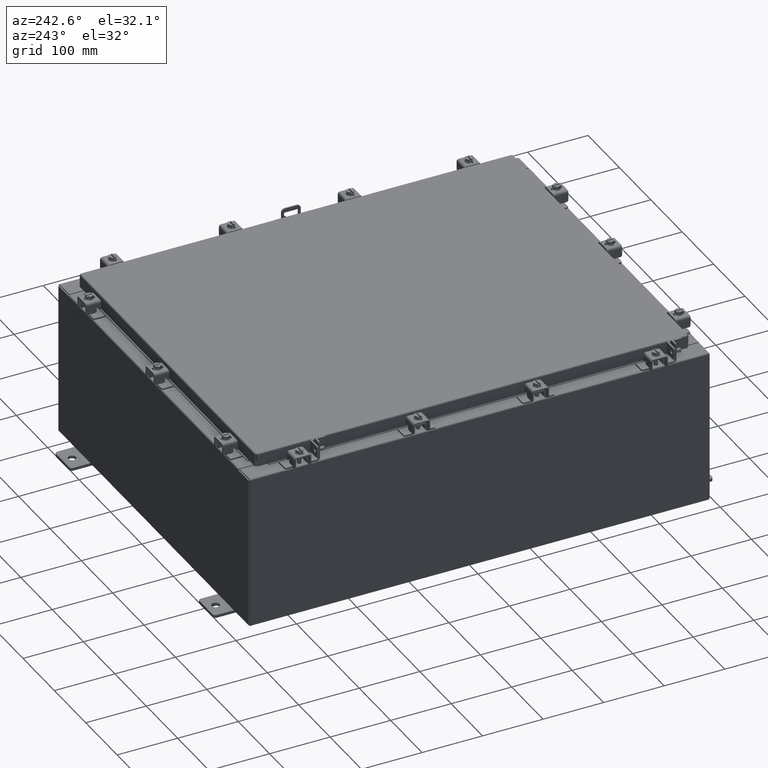
[diagram: clean part render]
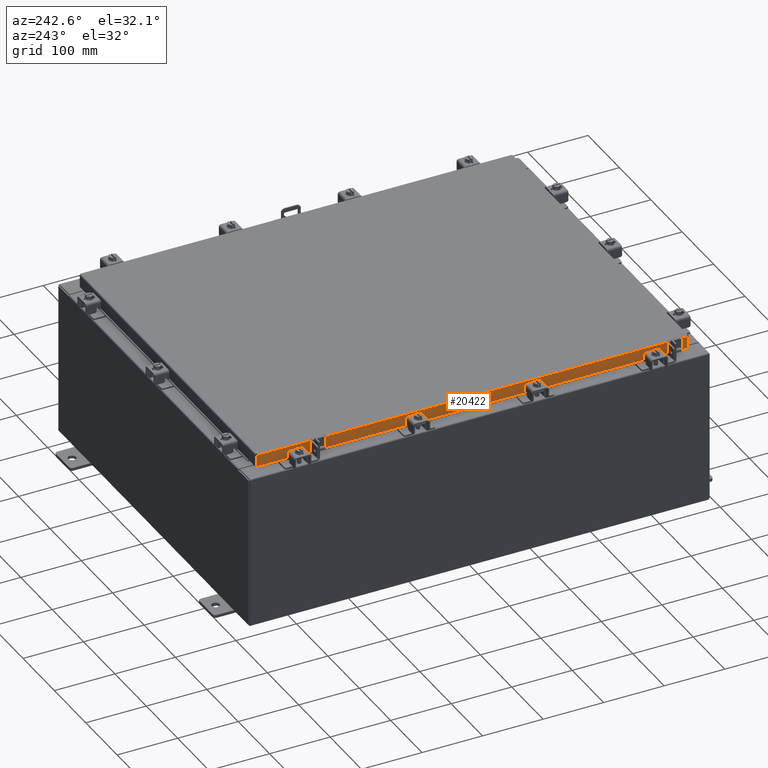
[diagram: same view with one face highlighted and labeled with its STEP entity id]
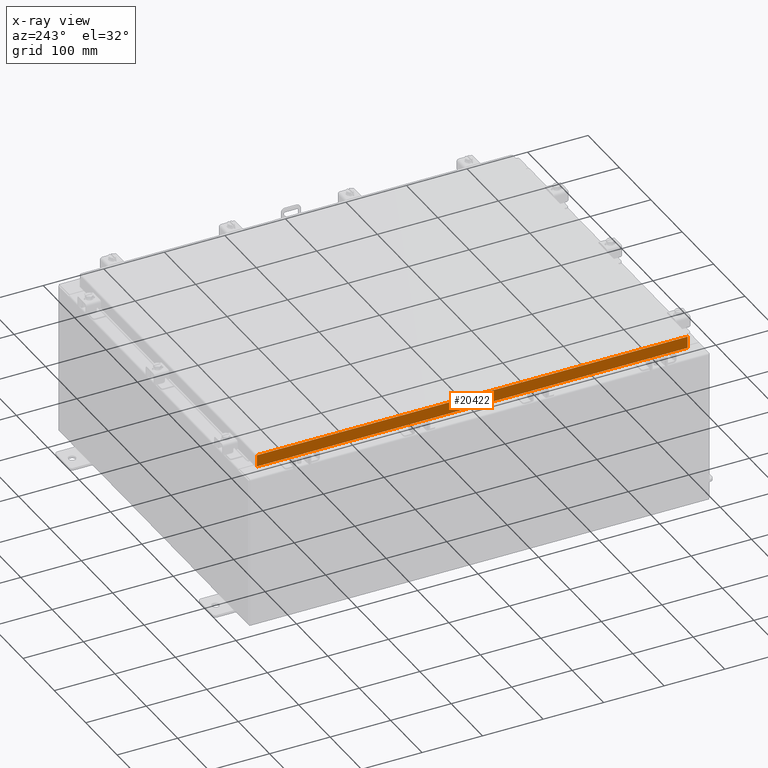
[diagram: x-ray of the same camera — body ghosted, the highlighted face saturated]
A machine part, auxiliary view. The second image highlights one B-rep face of the part: STEP entity #20422.
The next image is the same camera in x-ray: the body ghosted, the highlighted face saturated — about 0% of this face is hidden behind the body in this view.
In plain terms, the highlighted planar face has unit normal (1, 0, -0).
Its self-contained STEP definition (entity closure, byte-faithful):
#102 = VERTEX_POINT ( 'NONE', #9119 ) ;
#269 = PLANE ( 'NONE',  #9446 ) ;
#1220 = DIRECTION ( 'NONE',  ( 3.414908049476327800E-031, -1.000000000000000000, -9.308245715024052500E-046 ) ) ;
#1423 = LINE ( 'NONE', #15552, #19896 ) ;
#1425 = CARTESIAN_POINT ( 'NONE',  ( -11.07800000000000300, 14.00515786437627400, -0.8499999999999963100 ) ) ;
#1813 = VECTOR ( 'NONE', #16331, 39.37007874015748100 ) ;
#1892 = ORIENTED_EDGE ( 'NONE', *, *, #10545, .F. ) ;
#3062 = CARTESIAN_POINT ( 'NONE',  ( -11.07800000000000300, -14.09399999999999600, -0.8499999999999996400 ) ) ;
#3596 = VERTEX_POINT ( 'NONE', #18783 ) ;
#3731 = VECTOR ( 'NONE', #19124, 39.37007874015748100 ) ;
#4793 = DIRECTION ( 'NONE',  ( -0.0000000000000000000, 1.000000000000000000, 1.211441035930299800E-016 ) ) ;
#5317 = DIRECTION ( 'NONE',  ( -0.0000000000000000000, 1.000000000000000000, -0.0000000000000000000 ) ) ;
#6994 = EDGE_CURVE ( 'NONE', #3596, #14666, #7610, .T. ) ;
#7215 = ORIENTED_EDGE ( 'NONE', *, *, #8683, .F. ) ;
#7602 = EDGE_LOOP ( 'NONE', ( #16885, #17702, #12113, #7215, #1892, #11628 ) ) ;
#7610 = LINE ( 'NONE', #15566, #16556 ) ;
#8520 = CARTESIAN_POINT ( 'NONE',  ( -11.07800000000000300, -14.09399999999999600, -0.8499999999999996400 ) ) ;
#8683 = EDGE_CURVE ( 'NONE', #16158, #102, #16867, .T. ) ;
#9119 = CARTESIAN_POINT ( 'NONE',  ( -11.07799999999999600, 13.25515786437627400, -0.8500000000000012000 ) ) ;
#9239 = LINE ( 'NONE', #3062, #13424 ) ;
#9324 = DIRECTION ( 'NONE',  ( 1.000000000000000000, 3.414908049476327800E-031, -2.818880942772360100E-015 ) ) ;
#9446 = AXIS2_PLACEMENT_3D ( 'NONE', #16452, #9324, #21799 ) ;
#9768 = EDGE_CURVE ( 'NONE', #102, #17603, #10120, .T. ) ;
#10120 = LINE ( 'NONE', #8520, #3731 ) ;
#10236 = DIRECTION ( 'NONE',  ( -2.818880942772360100E-015, 6.982962677686265900E-015, -1.000000000000000000 ) ) ;
#10545 = EDGE_CURVE ( 'NONE', #15929, #16158, #9239, .T. ) ;
#11628 = ORIENTED_EDGE ( 'NONE', *, *, #17116, .F. ) ;
#12113 = ORIENTED_EDGE ( 'NONE', *, *, #9768, .F. ) ;
#12130 = VECTOR ( 'NONE', #5317, 39.37007874015748100 ) ;
#12394 = CARTESIAN_POINT ( 'NONE',  ( -11.07799999999999600, -13.25515786437626200, -0.8500000000000012000 ) ) ;
#12495 = CARTESIAN_POINT ( 'NONE',  ( -11.07799999999999900, -14.00515786437626400, -0.08770000000000007000 ) ) ;
#13424 = VECTOR ( 'NONE', #4793, 39.37007874015748100 ) ;
#14280 = FACE_OUTER_BOUND ( 'NONE', #7602, .T. ) ;
#14522 = CARTESIAN_POINT ( 'NONE',  ( -11.07799999999999900, -14.00515786437626500, -0.07469999999999978000 ) ) ;
#14666 = VERTEX_POINT ( 'NONE', #12495 ) ;
#15552 = CARTESIAN_POINT ( 'NONE',  ( -11.07799999999999900, 14.00515786437626900, 1.292858714020875700E-013 ) ) ;
#15566 = CARTESIAN_POINT ( 'NONE',  ( -11.07799999999999900, -14.09399999999999600, -0.08770000000000007000 ) ) ;
#15929 = VERTEX_POINT ( 'NONE', #16125 ) ;
#16118 = LINE ( 'NONE', #14522, #1813 ) ;
#16125 = CARTESIAN_POINT ( 'NONE',  ( -11.07800000000000300, -14.00515786437626200, -0.8499999999999996400 ) ) ;
#16158 = VERTEX_POINT ( 'NONE', #16992 ) ;
#16331 = DIRECTION ( 'NONE',  ( -2.818880942772360100E-015, 6.982962677686265900E-015, -1.000000000000000000 ) ) ;
#16452 = CARTESIAN_POINT ( 'NONE',  ( -11.07799999999999900, -3.783035137209876100E-030, 3.148837674004379000E-014 ) ) ;
#16556 = VECTOR ( 'NONE', #1220, 39.37007874015748100 ) ;
#16867 = LINE ( 'NONE', #12394, #12130 ) ;
#16885 = ORIENTED_EDGE ( 'NONE', *, *, #6994, .F. ) ;
#16992 = CARTESIAN_POINT ( 'NONE',  ( -11.07799999999999600, -13.25515786437625600, -0.8500000000000012000 ) ) ;
#17116 = EDGE_CURVE ( 'NONE', #14666, #15929, #16118, .T. ) ;
#17603 = VERTEX_POINT ( 'NONE', #1425 ) ;
#17702 = ORIENTED_EDGE ( 'NONE', *, *, #19541, .T. ) ;
#18783 = CARTESIAN_POINT ( 'NONE',  ( -11.07799999999999900, 14.00515786437626900, -0.08770000000000007000 ) ) ;
#19124 = DIRECTION ( 'NONE',  ( -0.0000000000000000000, 1.000000000000000000, 1.211441035930299800E-016 ) ) ;
#19541 = EDGE_CURVE ( 'NONE', #3596, #17603, #1423, .T. ) ;
#19896 = VECTOR ( 'NONE', #10236, 39.37007874015748100 ) ;
#20422 = ADVANCED_FACE ( 'NONE', ( #14280 ), #269, .F. ) ;
#21799 = DIRECTION ( 'NONE',  ( -2.818880942772360100E-015, 0.0000000000000000000, -1.000000000000000000 ) ) ;